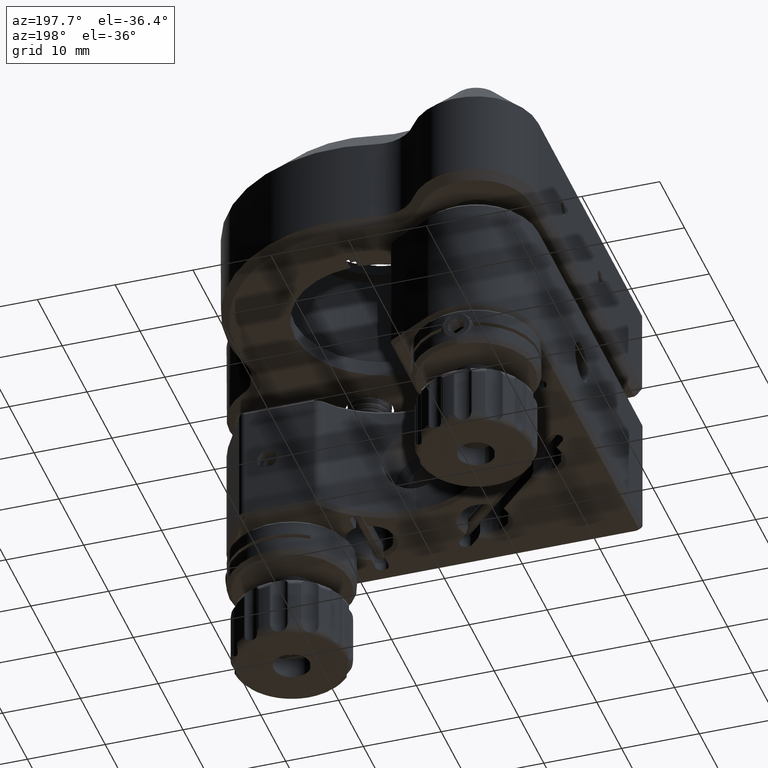
[diagram: clean part render]
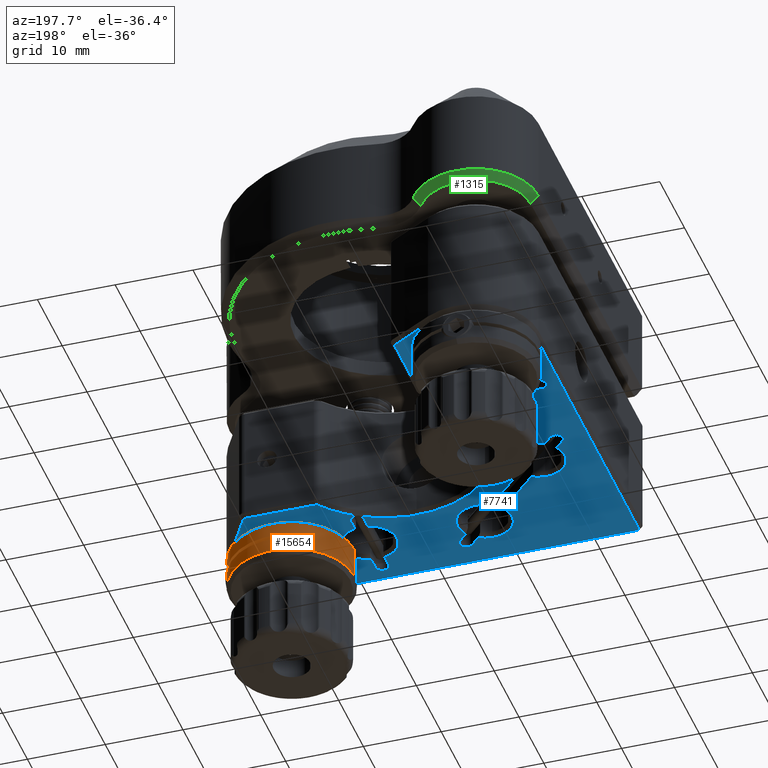
[diagram: same view with three faces highlighted in distinct colors, each labeled with its STEP entity id]
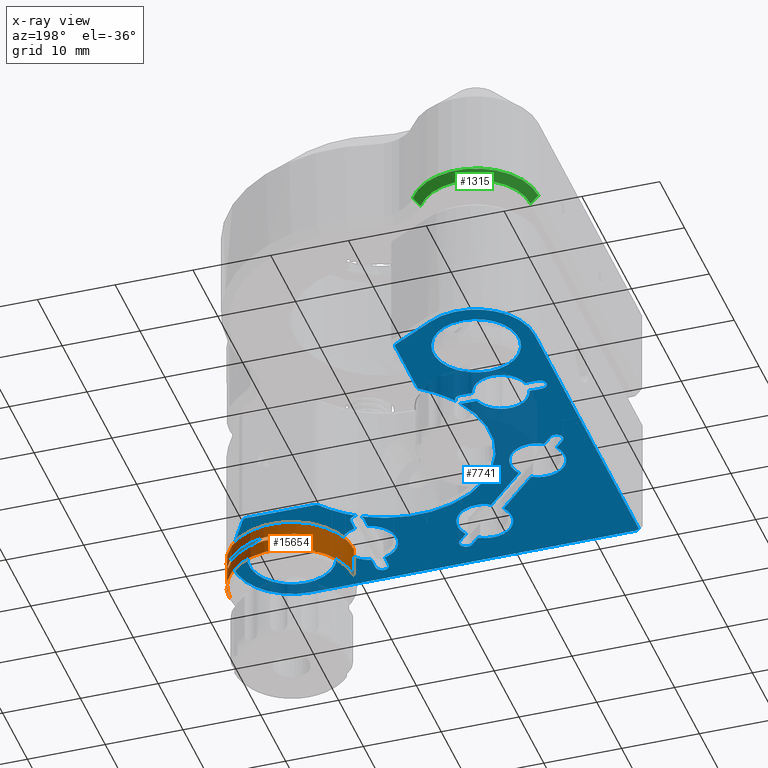
[diagram: x-ray of the same camera — body ghosted, the three highlighted faces saturated]
A machine part, auxiliary view with three faces highlighted in distinct colors.
The next image is the same camera in x-ray (body ghosted, the three faces saturated) — at least one of them is partly hidden behind the body in this view.
Their STEP definitions:

[orange] entity #15654 — the highlighted cylindrical surface (partial cylindrical patch) has radius 8 mm, axis along (0, 0, 1).
#967 = B_SPLINE_CURVE_WITH_KNOTS ( 'NONE', 3,
 ( #7220, #13967, #23044, #1119, #22628, #20465, #2882, #9510, #20321, #22901, #7793, #25336, #20744, #16425 ),
 .UNSPECIFIED., .F., .F.,
 ( 4, 2, 2, 2, 2, 2, 4 ),
 ( 0.000000000000000000, 0.0005840318241154156048, 0.001168063648230831210, 0.001460079560288547523, 0.001752095472346263619, 0.002044111384403979499, 0.002336127296461695813 ),
 .UNSPECIFIED. ) ;
#975 = ORIENTED_EDGE ( 'NONE', *, *, #8907, .T. ) ;
#1038 = DIRECTION ( 'NONE',  ( -0.000000000000000000, -0.000000000000000000, -1.000000000000000000 ) ) ;
#1043 = CARTESIAN_POINT ( 'NONE',  ( 31.74836364231643770, -21.98698666391774381, 20.84723559899007128 ) ) ;
#1119 = CARTESIAN_POINT ( 'NONE',  ( 31.80744251881375462, -22.44625419247633147, 18.25113183411697548 ) ) ;
#1179 = CARTESIAN_POINT ( 'NONE',  ( 31.68122993948196964, -21.61186016449638814, 20.17101546475221951 ) ) ;
#1197 = DIRECTION ( 'NONE',  ( -1.000000000000000000, 0.000000000000000000, 0.000000000000000000 ) ) ;
#1298 = DIRECTION ( 'NONE',  ( 1.000000000000000000, 0.000000000000000000, 0.000000000000000000 ) ) ;
#1321 = CARTESIAN_POINT ( 'NONE',  ( 31.84133761737278334, -23.00981462786942089, 21.37958492358061946 ) ) ;
#1747 = CARTESIAN_POINT ( 'NONE',  ( 31.67332331705330262, -21.57374314006720084, 19.47958492358062443 ) ) ;
#2358 = CARTESIAN_POINT ( 'NONE',  ( 31.84133761737279755, -23.20469378309720909, 21.37958492358062657 ) ) ;
#2558 = VECTOR ( 'NONE', #25192, 1000.000000000000000 ) ;
#2592 = CARTESIAN_POINT ( 'NONE',  ( 31.67332331705330262, -21.57374314006720084, 19.97958492358062443 ) ) ;
#2882 = CARTESIAN_POINT ( 'NONE',  ( 31.74846348273433705, -21.98764031338685854, 18.61124356520042156 ) ) ;
#3372 = VERTEX_POINT ( 'NONE', #13090 ) ;
#3399 = AXIS2_PLACEMENT_3D ( 'NONE', #21066, #18755, #1298 ) ;
#3414 = ORIENTED_EDGE ( 'NONE', *, *, #7847, .T. ) ;
#4566 = EDGE_CURVE ( 'NONE', #18364, #27847, #14442, .T. ) ;
#4568 = CARTESIAN_POINT ( 'NONE',  ( 15.84133761737279578, -23.20469378309720909, 21.72958492358062443 ) ) ;
#5106 = VERTEX_POINT ( 'NONE', #2592 ) ;
#5390 = CARTESIAN_POINT ( 'NONE',  ( 31.70157631974912604, -21.71507504129181143, 20.44584957524390489 ) ) ;
#5527 = CARTESIAN_POINT ( 'NONE',  ( 31.84133761737279755, -23.20469378309720909, 54.58602672155263491 ) ) ;
#5607 = LINE ( 'NONE', #14391, #2558 ) ;
#5885 = CARTESIAN_POINT ( 'NONE',  ( 31.84133761737279755, -23.20469378309720909, 18.07958492358062585 ) ) ;
#6113 = DIRECTION ( 'NONE',  ( 0.000000000000000000, 0.000000000000000000, 1.000000000000000000 ) ) ;
#6416 = AXIS2_PLACEMENT_3D ( 'NONE', #12418, #9854, #20790 ) ;
#6868 = CARTESIAN_POINT ( 'NONE',  ( 19.34133761737279400, -16.59031550543573630, 19.47958492358062443 ) ) ;
#7220 = CARTESIAN_POINT ( 'NONE',  ( 31.84133761737279755, -23.20469378309720909, 18.07958492358062585 ) ) ;
#7343 = CARTESIAN_POINT ( 'NONE',  ( 23.84133761737279755, -23.20469378309720909, 21.72958492358062443 ) ) ;
#7607 = CARTESIAN_POINT ( 'NONE',  ( 23.84133761737279755, -23.20469378309720909, 19.97958492358062443 ) ) ;
#7793 = CARTESIAN_POINT ( 'NONE',  ( 31.69387922324782281, -21.67543702280410400, 19.10240985051771290 ) ) ;
#7847 = EDGE_CURVE ( 'NONE', #3372, #25959, #5607, .T. ) ;
#7854 = CARTESIAN_POINT ( 'NONE',  ( 31.72846720758230177, -21.86414985823764212, 20.69648494212735557 ) ) ;
#7988 = DIRECTION ( 'NONE',  ( 0.000000000000000000, 0.000000000000000000, 1.000000000000000000 ) ) ;
#7993 = CARTESIAN_POINT ( 'NONE',  ( 31.83383928258375661, -22.81308175913868297, 21.34420305969596754 ) ) ;
#8056 = VERTEX_POINT ( 'NONE', #5885 ) ;
#8907 = EDGE_CURVE ( 'NONE', #5106, #10847, #14999, .T. ) ;
#9476 = CARTESIAN_POINT ( 'NONE',  ( 19.34133761737279400, -16.59031550543573630, 19.97958492358062443 ) ) ;
#9510 = CARTESIAN_POINT ( 'NONE',  ( 31.72861111236482401, -21.86500149977254281, 18.76152959045239044 ) ) ;
#9623 = B_SPLINE_CURVE_WITH_KNOTS ( 'NONE', 3,
 ( #23393, #25403, #1179, #18914, #5390, #16899, #7854, #1043, #27710, #14318, #25111, #18777, #18493, #7993, #1321, #20943 ),
 .UNSPECIFIED., .F., .F.,
 ( 4, 2, 2, 2, 2, 2, 2, 4 ),
 ( 0.002835874755387480378, 0.003127960128604555766, 0.003420045501821630720, 0.003712130875038705674, 0.004004216248255781062, 0.004296301621472856450, 0.004588386994689930970, 0.005172557741124078276 ),
 .UNSPECIFIED. ) ;
#9700 = VERTEX_POINT ( 'NONE', #20808 ) ;
#9854 = DIRECTION ( 'NONE',  ( 0.000000000000000000, 0.000000000000000000, 1.000000000000000000 ) ) ;
#10429 = FACE_OUTER_BOUND ( 'NONE', #23805, .T. ) ;
#10847 = VERTEX_POINT ( 'NONE', #9476 ) ;
#12418 = CARTESIAN_POINT ( 'NONE',  ( 23.84133761737279755, -23.20469378309720909, 17.72958492358062088 ) ) ;
#12503 = ORIENTED_EDGE ( 'NONE', *, *, #23009, .F. ) ;
#12679 = CARTESIAN_POINT ( 'NONE',  ( 31.84133761737279755, -23.20469378309720909, 21.72958492358062443 ) ) ;
#13090 = CARTESIAN_POINT ( 'NONE',  ( 15.84133761737279578, -23.20469378309720909, 17.72958492358062088 ) ) ;
#13947 = DIRECTION ( 'NONE',  ( 1.000000000000000000, 0.000000000000000000, 0.000000000000000000 ) ) ;
#13967 = CARTESIAN_POINT ( 'NONE',  ( 31.84133761737280466, -23.00717356995111018, 18.07958492358063296 ) ) ;
#14318 = CARTESIAN_POINT ( 'NONE',  ( 31.77877548211112568, -22.20339011480492530, 21.04462255250070868 ) ) ;
#14356 = DIRECTION ( 'NONE',  ( 1.040834085586084257E-16, 5.777789833161707559E-33, 1.000000000000000000 ) ) ;
#14391 = CARTESIAN_POINT ( 'NONE',  ( 15.84133761737279578, -23.20469378309720909, 54.58602672155263491 ) ) ;
#14442 = CIRCLE ( 'NONE', #3399, 8.000000000000000000 ) ;
#14999 = CIRCLE ( 'NONE', #26498, 8.000000000000000000 ) ;
#15635 = ORIENTED_EDGE ( 'NONE', *, *, #27816, .F. ) ;
#15654 = ADVANCED_FACE ( 'NONE', ( #10429 ), #21386, .T. ) ;
#16121 = DIRECTION ( 'NONE',  ( 0.000000000000000000, 0.000000000000000000, -1.000000000000000000 ) ) ;
#16329 = EDGE_CURVE ( 'NONE', #9700, #3372, #24790, .T. ) ;
#16425 = CARTESIAN_POINT ( 'NONE',  ( 31.67332331705330262, -21.57374314006720084, 19.47958492358062443 ) ) ;
#16505 = CARTESIAN_POINT ( 'NONE',  ( 23.84133761737279755, -23.20469378309720909, 54.58602672155263491 ) ) ;
#16563 = ORIENTED_EDGE ( 'NONE', *, *, #4566, .T. ) ;
#16596 = AXIS2_PLACEMENT_3D ( 'NONE', #7343, #16121, #13947 ) ;
#16597 = VECTOR ( 'NONE', #7988, 1000.000000000000000 ) ;
#16619 = LINE ( 'NONE', #27703, #23360 ) ;
#16899 = CARTESIAN_POINT ( 'NONE',  ( 31.71893036786227427, -21.80975689860810007, 20.61623600233259523 ) ) ;
#17049 = ORIENTED_EDGE ( 'NONE', *, *, #24411, .F. ) ;
#17192 = ORIENTED_EDGE ( 'NONE', *, *, #16329, .T. ) ;
#18364 = VERTEX_POINT ( 'NONE', #6868 ) ;
#18493 = CARTESIAN_POINT ( 'NONE',  ( 31.81415698634486944, -22.53947801271078077, 21.24267808149409476 ) ) ;
#18746 = EDGE_CURVE ( 'NONE', #9700, #8056, #25673, .T. ) ;
#18755 = DIRECTION ( 'NONE',  ( 1.040834085586084257E-16, 5.777789833161707559E-33, -1.000000000000000000 ) ) ;
#18777 = CARTESIAN_POINT ( 'NONE',  ( 31.80610933307745469, -22.45001871776702629, 21.20011671146383847 ) ) ;
#18783 = DIRECTION ( 'NONE',  ( 0.000000000000000000, 0.000000000000000000, 1.000000000000000000 ) ) ;
#18914 = CARTESIAN_POINT ( 'NONE',  ( 31.69376066704143113, -21.67483012647807428, 20.35528217575613397 ) ) ;
#19545 = VERTEX_POINT ( 'NONE', #2358 ) ;
#19831 = ORIENTED_EDGE ( 'NONE', *, *, #18746, .F. ) ;
#20321 = CARTESIAN_POINT ( 'NONE',  ( 31.71888717020190995, -21.80951347299764365, 18.84331471753442955 ) ) ;
#20465 = CARTESIAN_POINT ( 'NONE',  ( 31.75867948733381141, -22.05522660350167286, 18.54183641019163531 ) ) ;
#20744 = CARTESIAN_POINT ( 'NONE',  ( 31.67640516456978617, -21.58854247552279659, 19.38303698086973270 ) ) ;
#20790 = DIRECTION ( 'NONE',  ( -1.000000000000000000, 0.000000000000000000, 0.000000000000000000 ) ) ;
#20808 = CARTESIAN_POINT ( 'NONE',  ( 31.84133761737279755, -23.20469378309720909, 17.72958492358062088 ) ) ;
#20902 = EDGE_CURVE ( 'NONE', #25959, #24236, #24401, .T. ) ;
#20943 = CARTESIAN_POINT ( 'NONE',  ( 31.84133761737279755, -23.20469378309720909, 21.37958492358062657 ) ) ;
#21066 = CARTESIAN_POINT ( 'NONE',  ( 23.84133761737279755, -23.20469378309720909, 19.47958492358062443 ) ) ;
#21386 = CYLINDRICAL_SURFACE ( 'NONE', #24318, 8.000000000000000000 ) ;
#22628 = CARTESIAN_POINT ( 'NONE',  ( 31.78879783748940469, -22.27723252736478443, 18.35103462300584454 ) ) ;
#22901 = CARTESIAN_POINT ( 'NONE',  ( 31.70153561137657761, -21.71486072197045658, 19.01376341944121151 ) ) ;
#23009 = EDGE_CURVE ( 'NONE', #5106, #19545, #9623, .T. ) ;
#23044 = CARTESIAN_POINT ( 'NONE',  ( 31.83394211469726187, -22.81439740503078184, 18.11443078615781843 ) ) ;
#23360 = VECTOR ( 'NONE', #1038, 1000.000000000000000 ) ;
#23393 = CARTESIAN_POINT ( 'NONE',  ( 31.67332331705330262, -21.57374314006720084, 19.97958492358062443 ) ) ;
#23397 = LINE ( 'NONE', #25267, #26594 ) ;
#23430 = DIRECTION ( 'NONE',  ( -1.000000000000000000, 0.000000000000000000, 0.000000000000000000 ) ) ;
#23602 = ORIENTED_EDGE ( 'NONE', *, *, #27131, .T. ) ;
#23805 = EDGE_LOOP ( 'NONE', ( #19831, #17192, #3414, #24654, #15635, #12503, #975, #23602, #16563, #17049 ) ) ;
#24236 = VERTEX_POINT ( 'NONE', #12679 ) ;
#24318 = AXIS2_PLACEMENT_3D ( 'NONE', #16505, #6113, #1197 ) ;
#24401 = CIRCLE ( 'NONE', #16596, 8.000000000000000000 ) ;
#24411 = EDGE_CURVE ( 'NONE', #8056, #27847, #967, .T. ) ;
#24654 = ORIENTED_EDGE ( 'NONE', *, *, #20902, .T. ) ;
#24790 = CIRCLE ( 'NONE', #6416, 8.000000000000000000 ) ;
#25111 = CARTESIAN_POINT ( 'NONE',  ( 31.78841523784186407, -22.28215368545383157, 21.10105054897787014 ) ) ;
#25192 = DIRECTION ( 'NONE',  ( 0.000000000000000000, 0.000000000000000000, 1.000000000000000000 ) ) ;
#25267 = CARTESIAN_POINT ( 'NONE',  ( 31.84133761737279755, -23.20469378309720909, 54.58602672155263491 ) ) ;
#25336 = CARTESIAN_POINT ( 'NONE',  ( 31.68132022232672540, -21.61230291873000553, 19.28656557157271578 ) ) ;
#25403 = CARTESIAN_POINT ( 'NONE',  ( 31.67641737250303535, -21.58860109922117587, 20.07651531572579984 ) ) ;
#25673 = LINE ( 'NONE', #5527, #16597 ) ;
#25959 = VERTEX_POINT ( 'NONE', #4568 ) ;
#26498 = AXIS2_PLACEMENT_3D ( 'NONE', #7607, #14356, #23430 ) ;
#26594 = VECTOR ( 'NONE', #18783, 1000.000000000000000 ) ;
#27131 = EDGE_CURVE ( 'NONE', #10847, #18364, #16619, .T. ) ;
#27703 = CARTESIAN_POINT ( 'NONE',  ( 19.34133761737279400, -16.59031550543573630, 54.58602672155263491 ) ) ;
#27710 = CARTESIAN_POINT ( 'NONE',  ( 31.75879242944600023, -22.05602577557882782, 20.91806917257810028 ) ) ;
#27816 = EDGE_CURVE ( 'NONE', #19545, #24236, #23397, .T. ) ;
#27847 = VERTEX_POINT ( 'NONE', #1747 ) ;

[blue] entity #7741 — the highlighted planar face has unit normal (0, 0, 1).
#60 = CARTESIAN_POINT ( 'NONE',  ( -18.45866238262721737, -5.804693783097225612, 22.22958492358063154 ) ) ;
#248 = EDGE_CURVE ( 'NONE', #11091, #2438, #20860, .T. ) ;
#497 = CIRCLE ( 'NONE', #27469, 3.499999999999992895 ) ;
#731 = AXIS2_PLACEMENT_3D ( 'NONE', #8137, #19060, #5400 ) ;
#734 = CIRCLE ( 'NONE', #17779, 3.499999999999992895 ) ;
#790 = AXIS2_PLACEMENT_3D ( 'NONE', #22243, #22385, #11280 ) ;
#836 = VERTEX_POINT ( 'NONE', #19022 ) ;
#889 = VECTOR ( 'NONE', #7107, 1000.000000000000000 ) ;
#905 = ORIENTED_EDGE ( 'NONE', *, *, #5652, .T. ) ;
#973 = CARTESIAN_POINT ( 'NONE',  ( 14.69133761737279364, -19.80947655882423319, 22.22958492358063154 ) ) ;
#1008 = ORIENTED_EDGE ( 'NONE', *, *, #4770, .T. ) ;
#1087 = CARTESIAN_POINT ( 'NONE',  ( 12.99133761737279436, -18.20469378309721264, 22.22958492358063154 ) ) ;
#1152 = VERTEX_POINT ( 'NONE', #10666 ) ;
#1435 = CARTESIAN_POINT ( 'NONE',  ( 1.975830759296966832, -27.34126845303851994, 22.22958492358063154 ) ) ;
#1672 = EDGE_CURVE ( 'NONE', #22826, #19623, #7939, .T. ) ;
#1736 = DIRECTION ( 'NONE',  ( -0.7071067811865477948, 0.7071067811865473507, 0.000000000000000000 ) ) ;
#1791 = CIRCLE ( 'NONE', #5511, 3.499999999999996003 ) ;
#1827 = CARTESIAN_POINT ( 'NONE',  ( 0.8410779762490251388, -26.20651566999057636, 22.22958492358063154 ) ) ;
#1835 = AXIS2_PLACEMENT_3D ( 'NONE', #24752, #18415, #2863 ) ;
#1842 = DIRECTION ( 'NONE',  ( -2.844946500601963635E-16, 1.000000000000000000, -0.000000000000000000 ) ) ;
#2046 = CARTESIAN_POINT ( 'NONE',  ( 12.99133761737279436, -18.20469378309721264, 22.22958492358063154 ) ) ;
#2161 = CIRCLE ( 'NONE', #16460, 0.8500000000000000888 ) ;
#2438 = VERTEX_POINT ( 'NONE', #25828 ) ;
#2653 = DIRECTION ( 'NONE',  ( 0.000000000000000000, 0.000000000000000000, 1.000000000000000000 ) ) ;
#2671 = CARTESIAN_POINT ( 'NONE',  ( 2.043159504266153448, -25.00443414197344438, 22.22958492358063154 ) ) ;
#2706 = CARTESIAN_POINT ( 'NONE',  ( -5.433177044797020017, 0.9272005667803678852, 22.22958492358063154 ) ) ;
#2763 = ORIENTED_EDGE ( 'NONE', *, *, #20870, .T. ) ;
#2813 = EDGE_CURVE ( 'NONE', #22662, #28340, #22219, .T. ) ;
#2818 = CARTESIAN_POINT ( 'NONE',  ( -5.958662382627210263, 0.7453062169027798722, 22.22958492358063154 ) ) ;
#2863 = DIRECTION ( 'NONE',  ( 0.000000000000000000, -1.000000000000000000, 0.000000000000000000 ) ) ;
#2912 = LINE ( 'NONE', #26821, #889 ) ;
#2929 = CARTESIAN_POINT ( 'NONE',  ( 3.177912287314090367, -26.13918692502138086, 22.22958492358063154 ) ) ;
#2944 = CARTESIAN_POINT ( 'NONE',  ( 6.441337617372800750, -30.70469378309722686, 22.22958492358063154 ) ) ;
#2984 = AXIS2_PLACEMENT_3D ( 'NONE', #19253, #2653, #19541 ) ;
#3059 = CIRCLE ( 'NONE', #731, 3.499999999999992895 ) ;
#3076 = CARTESIAN_POINT ( 'NONE',  ( -15.09523705256850867, -10.27020064117305509, 22.22958492358063154 ) ) ;
#3118 = DIRECTION ( 'NONE',  ( -0.000000000000000000, -0.000000000000000000, -1.000000000000000000 ) ) ;
#3155 = DIRECTION ( 'NONE',  ( 0.000000000000000000, -1.000000000000000000, 0.000000000000000000 ) ) ;
#3206 = ORIENTED_EDGE ( 'NONE', *, *, #13699, .T. ) ;
#3228 = LINE ( 'NONE', #2944, #16670 ) ;
#3265 = DIRECTION ( 'NONE',  ( -0.000000000000000000, -0.000000000000000000, -1.000000000000000000 ) ) ;
#3299 = EDGE_CURVE ( 'NONE', #11806, #14359, #12807, .T. ) ;
#3301 = VERTEX_POINT ( 'NONE', #4167 ) ;
#3334 = CARTESIAN_POINT ( 'NONE',  ( 12.99133761737279613, -26.59991100737020275, 22.22958492358063154 ) ) ;
#3344 = ORIENTED_EDGE ( 'NONE', *, *, #19095, .T. ) ;
#3445 = CARTESIAN_POINT ( 'NONE',  ( -10.95866238262721204, 6.095306216902775631, 22.22958492358063154 ) ) ;
#3450 = LINE ( 'NONE', #18992, #6186 ) ;
#3577 = CARTESIAN_POINT ( 'NONE',  ( 13.84133761737279400, -23.20469378309721620, 22.22958492358063154 ) ) ;
#3692 = CIRCLE ( 'NONE', #28070, 0.8500000000000000888 ) ;
#3793 = VERTEX_POINT ( 'NONE', #2818 ) ;
#3826 = VERTEX_POINT ( 'NONE', #2671 ) ;
#3919 = LINE ( 'NONE', #21501, #27154 ) ;
#3922 = VERTEX_POINT ( 'NONE', #22700 ) ;
#4006 = VERTEX_POINT ( 'NONE', #25520 ) ;
#4143 = CIRCLE ( 'NONE', #27613, 5.499999999999991118 ) ;
#4167 = CARTESIAN_POINT ( 'NONE',  ( -7.563445158354221043, 2.445306216902775720, 22.22958492358063154 ) ) ;
#4173 = CARTESIAN_POINT ( 'NONE',  ( 12.99133761737279436, -19.80947655882423319, 22.22958492358063154 ) ) ;
#4200 = CIRCLE ( 'NONE', #20316, 3.499999999999992895 ) ;
#4247 = ORIENTED_EDGE ( 'NONE', *, *, #14487, .T. ) ;
#4323 = DIRECTION ( 'NONE',  ( 0.000000000000000000, -1.000000000000000000, 0.000000000000000000 ) ) ;
#4338 = AXIS2_PLACEMENT_3D ( 'NONE', #24168, #24316, #19560 ) ;
#4352 = CARTESIAN_POINT ( 'NONE',  ( -5.121170548003895817, 1.450022264109389392, 22.22958492358063154 ) ) ;
#4419 = CIRCLE ( 'NONE', #13624, 7.500000000000010658 ) ;
#4546 = ORIENTED_EDGE ( 'NONE', *, *, #22461, .T. ) ;
#4547 = ORIENTED_EDGE ( 'NONE', *, *, #16220, .T. ) ;
#4638 = CARTESIAN_POINT ( 'NONE',  ( -15.95866238262721382, 0.7453062169027755424, 22.22958492358063154 ) ) ;
#4670 = EDGE_CURVE ( 'NONE', #26431, #836, #27782, .T. ) ;
#4690 = VERTEX_POINT ( 'NONE', #5788 ) ;
#4759 = FACE_BOUND ( 'NONE', #10952, .T. ) ;
#4770 = EDGE_CURVE ( 'NONE', #6386, #22826, #6212, .T. ) ;
#4799 = VERTEX_POINT ( 'NONE', #6070 ) ;
#4826 = VERTEX_POINT ( 'NONE', #18894 ) ;
#4853 = DIRECTION ( 'NONE',  ( 0.000000000000000000, -1.000000000000000000, 0.000000000000000000 ) ) ;
#4878 = AXIS2_PLACEMENT_3D ( 'NONE', #20165, #26642, #6929 ) ;
#4899 = PLANE ( 'NONE',  #4878 ) ;
#4964 = CARTESIAN_POINT ( 'NONE',  ( 6.441337617372796309, -13.70469378309721975, 22.22958492358063154 ) ) ;
#5040 = FACE_OUTER_BOUND ( 'NONE', #18913, .T. ) ;
#5080 = ORIENTED_EDGE ( 'NONE', *, *, #21570, .T. ) ;
#5354 = VERTEX_POINT ( 'NONE', #1827 ) ;
#5387 = EDGE_CURVE ( 'NONE', #19623, #4690, #3450, .T. ) ;
#5400 = DIRECTION ( 'NONE',  ( 1.239088197126293282E-16, -1.000000000000000000, 0.000000000000000000 ) ) ;
#5511 = AXIS2_PLACEMENT_3D ( 'NONE', #10499, #10790, #25759 ) ;
#5547 = VERTEX_POINT ( 'NONE', #19129 ) ;
#5568 = VECTOR ( 'NONE', #16864, 1000.000000000000000 ) ;
#5652 = EDGE_CURVE ( 'NONE', #7006, #4799, #24114, .T. ) ;
#5715 = ORIENTED_EDGE ( 'NONE', *, *, #20454, .T. ) ;
#5739 = LINE ( 'NONE', #14523, #11729 ) ;
#5788 = CARTESIAN_POINT ( 'NONE',  ( -3.960484269520566869, -21.40495342422099156, 22.22958492358063154 ) ) ;
#5896 = CARTESIAN_POINT ( 'NONE',  ( -12.75840274150344023, -10.20287189620386314, 22.22958492358063154 ) ) ;
#5969 = ORIENTED_EDGE ( 'NONE', *, *, #11261, .T. ) ;
#6000 = EDGE_CURVE ( 'NONE', #27539, #20535, #5739, .T. ) ;
#6058 = CIRCLE ( 'NONE', #27692, 0.8500000000000000888 ) ;
#6070 = CARTESIAN_POINT ( 'NONE',  ( 23.84133761737279400, -17.70469378309722686, 22.22958492358063154 ) ) ;
#6122 = EDGE_CURVE ( 'NONE', #11309, #11806, #9910, .T. ) ;
#6128 = ORIENTED_EDGE ( 'NONE', *, *, #10979, .T. ) ;
#6186 = VECTOR ( 'NONE', #8069, 999.9999999999998863 ) ;
#6212 = LINE ( 'NONE', #1435, #19956 ) ;
#6255 = EDGE_CURVE ( 'NONE', #5354, #1152, #26851, .T. ) ;
#6309 = CARTESIAN_POINT ( 'NONE',  ( -10.95866238262720849, 1.595306216902775631, 22.22958492358063154 ) ) ;
#6363 = EDGE_CURVE ( 'NONE', #4006, #14691, #18635, .T. ) ;
#6386 = VERTEX_POINT ( 'NONE', #3076 ) ;
#6403 = DIRECTION ( 'NONE',  ( 0.000000000000000000, 0.000000000000000000, 1.000000000000000000 ) ) ;
#6462 = EDGE_CURVE ( 'NONE', #24052, #15926, #7565, .T. ) ;
#6487 = VERTEX_POINT ( 'NONE', #14024 ) ;
#6515 = CIRCLE ( 'NONE', #17072, 0.5000000000000073275 ) ;
#6544 = DIRECTION ( 'NONE',  ( 0.000000000000000000, -1.000000000000000000, 0.000000000000000000 ) ) ;
#6564 = CARTESIAN_POINT ( 'NONE',  ( -13.96048426952057042, -11.40495342422099334, 22.22958492358063154 ) ) ;
#6565 = CARTESIAN_POINT ( 'NONE',  ( -9.158922023750973196, -16.20651566999058701, 22.22958492358063154 ) ) ;
#6600 = DIRECTION ( 'NONE',  ( 0.000000000000000000, -1.000000000000000000, 0.000000000000000000 ) ) ;
#6672 = CARTESIAN_POINT ( 'NONE',  ( 3.177912287314090367, -26.13918692502138086, 22.22958492358063154 ) ) ;
#6715 = LINE ( 'NONE', #10745, #16853 ) ;
#6929 = DIRECTION ( 'NONE',  ( 1.110223024625156540E-16, -1.000000000000000000, 0.000000000000000000 ) ) ;
#6967 = DIRECTION ( 'NONE',  ( 0.8660254037844418162, -0.4999999999999946709, 0.000000000000000000 ) ) ;
#7006 = VERTEX_POINT ( 'NONE', #11559 ) ;
#7031 = ORIENTED_EDGE ( 'NONE', *, *, #21250, .T. ) ;
#7107 = DIRECTION ( 'NONE',  ( 2.844946500601963635E-16, -1.000000000000000000, 0.000000000000000000 ) ) ;
#7182 = ORIENTED_EDGE ( 'NONE', *, *, #25725, .T. ) ;
#7292 = ORIENTED_EDGE ( 'NONE', *, *, #28205, .T. ) ;
#7425 = ORIENTED_EDGE ( 'NONE', *, *, #6363, .T. ) ;
#7565 = LINE ( 'NONE', #20800, #8967 ) ;
#7638 = DIRECTION ( 'NONE',  ( 1.239088197126293282E-16, -1.000000000000000000, 0.000000000000000000 ) ) ;
#7659 = DIRECTION ( 'NONE',  ( 0.000000000000000000, 0.000000000000000000, 1.000000000000000000 ) ) ;
#7678 = VERTEX_POINT ( 'NONE', #973 ) ;
#7741 = ADVANCED_FACE ( 'NONE', ( #5040, #16137, #4759, #17860 ), #4899, .F. ) ;
#7788 = CARTESIAN_POINT ( 'NONE',  ( -2.758402741503435784, -20.20287189620386314, 22.22958492358063154 ) ) ;
#7798 = CARTESIAN_POINT ( 'NONE',  ( -18.45866238262722092, 11.59530621690277741, 22.22958492358063154 ) ) ;
#7859 = CARTESIAN_POINT ( 'NONE',  ( 13.84133761737279400, -18.20469378309721620, 22.22958492358063154 ) ) ;
#7939 = CIRCLE ( 'NONE', #11610, 3.499999999999996003 ) ;
#7940 = DIRECTION ( 'NONE',  ( 1.270859689360299146E-16, -1.000000000000000000, 0.000000000000000000 ) ) ;
#8018 = CARTESIAN_POINT ( 'NONE',  ( 13.84133761737279400, -18.20469378309721620, 22.22958492358063154 ) ) ;
#8058 = CARTESIAN_POINT ( 'NONE',  ( -10.95866238262721204, 11.59530621690277385, 22.22958492358063154 ) ) ;
#8069 = DIRECTION ( 'NONE',  ( 0.7071067811865479058, -0.7071067811865472397, 0.000000000000000000 ) ) ;
#8137 = CARTESIAN_POINT ( 'NONE',  ( -0.9586623826272075988, -23.20469378309721620, 22.22958492358063154 ) ) ;
#8154 = DIRECTION ( 'NONE',  ( 0.000000000000000000, 0.000000000000000000, 1.000000000000000000 ) ) ;
#8179 = CARTESIAN_POINT ( 'NONE',  ( 27.16110166521318448, -13.95469378309722330, 22.22958492358063154 ) ) ;
#8437 = CARTESIAN_POINT ( 'NONE',  ( -5.958662382627210263, 0.7453062169027798722, 22.22958492358063154 ) ) ;
#8493 = CARTESIAN_POINT ( 'NONE',  ( -14.35387960690019682, 0.7453062169027764305, 22.22958492358063154 ) ) ;
#8569 = DIRECTION ( 'NONE',  ( -0.000000000000000000, -0.000000000000000000, -1.000000000000000000 ) ) ;
#8634 = DIRECTION ( 'NONE',  ( 0.000000000000000000, 0.000000000000000000, 1.000000000000000000 ) ) ;
#8667 = CARTESIAN_POINT ( 'NONE',  ( 14.69133761737279364, -26.59991100737020275, 22.22958492358063154 ) ) ;
#8695 = CARTESIAN_POINT ( 'NONE',  ( 13.69605366457943596, -17.36720194847389465, 22.22958492358063154 ) ) ;
#8765 = EDGE_CURVE ( 'NONE', #14806, #26175, #4419, .T. ) ;
#8774 = CARTESIAN_POINT ( 'NONE',  ( 23.84133761737279400, -23.20469378309721620, 22.22958492358063154 ) ) ;
#8967 = VECTOR ( 'NONE', #13882, 1000.000000000000000 ) ;
#9156 = ORIENTED_EDGE ( 'NONE', *, *, #25849, .T. ) ;
#9232 = CIRCLE ( 'NONE', #17029, 0.8499999999999978684 ) ;
#9266 = EDGE_CURVE ( 'NONE', #25071, #12676, #734, .T. ) ;
#9276 = LINE ( 'NONE', #13727, #19184 ) ;
#9278 = AXIS2_PLACEMENT_3D ( 'NONE', #6309, #17538, #6600 ) ;
#9298 = CIRCLE ( 'NONE', #15263, 3.499999999999996003 ) ;
#9435 = CARTESIAN_POINT ( 'NONE',  ( 26.72808896332096040, -14.20469378309722330, 22.22958492358063154 ) ) ;
#9502 = ORIENTED_EDGE ( 'NONE', *, *, #14156, .T. ) ;
#9514 = EDGE_CURVE ( 'NONE', #14691, #17961, #26055, .T. ) ;
#9547 = ORIENTED_EDGE ( 'NONE', *, *, #22238, .T. ) ;
#9669 = CARTESIAN_POINT ( 'NONE',  ( -1.458662382627202714, 14.48205756285095624, 22.22958492358063154 ) ) ;
#9705 = DIRECTION ( 'NONE',  ( -0.7071067811865477948, 0.7071067811865473507, 0.000000000000000000 ) ) ;
#9735 = AXIS2_PLACEMENT_3D ( 'NONE', #21121, #23282, #14631 ) ;
#9838 = ORIENTED_EDGE ( 'NONE', *, *, #11734, .T. ) ;
#9867 = ORIENTED_EDGE ( 'NONE', *, *, #5387, .T. ) ;
#9876 = ORIENTED_EDGE ( 'NONE', *, *, #1672, .T. ) ;
#9885 = EDGE_CURVE ( 'NONE', #20535, #20671, #26539, .T. ) ;
#9910 = CIRCLE ( 'NONE', #2984, 0.8500000000000000888 ) ;
#10068 = DIRECTION ( 'NONE',  ( 0.000000000000000000, 0.000000000000000000, 1.000000000000000000 ) ) ;
#10210 = CARTESIAN_POINT ( 'NONE',  ( 14.69133761737279364, -18.20469378309721264, 22.22958492358063154 ) ) ;
#10253 = DIRECTION ( 'NONE',  ( -3.469446951953551080E-15, -1.000000000000000000, 0.000000000000000000 ) ) ;
#10274 = ORIENTED_EDGE ( 'NONE', *, *, #4670, .T. ) ;
#10318 = VERTEX_POINT ( 'NONE', #7788 ) ;
#10361 = CARTESIAN_POINT ( 'NONE',  ( 6.441337617372794533, -5.804693783097222948, 22.22958492358063154 ) ) ;
#10376 = VERTEX_POINT ( 'NONE', #10210 ) ;
#10383 = CARTESIAN_POINT ( 'NONE',  ( -14.35387960690019682, 2.445306216902772167, 22.22958492358063154 ) ) ;
#10416 = DIRECTION ( 'NONE',  ( 0.000000000000000000, 0.000000000000000000, 1.000000000000000000 ) ) ;
#10421 = AXIS2_PLACEMENT_3D ( 'NONE', #9435, #22967, #28092 ) ;
#10499 = CARTESIAN_POINT ( 'NONE',  ( -10.95866238262720849, 1.595306216902775631, 22.22958492358063154 ) ) ;
#10666 = CARTESIAN_POINT ( 'NONE',  ( 1.975830759296966832, -27.34126845303851994, 22.22958492358063154 ) ) ;
#10718 = DIRECTION ( 'NONE',  ( 0.000000000000000000, 0.000000000000000000, 1.000000000000000000 ) ) ;
#10745 = CARTESIAN_POINT ( 'NONE',  ( -5.958662382627212040, 2.445306216902775720, 22.22958492358063154 ) ) ;
#10790 = DIRECTION ( 'NONE',  ( 0.000000000000000000, 0.000000000000000000, 1.000000000000000000 ) ) ;
#10923 = CARTESIAN_POINT ( 'NONE',  ( -7.208662382627242238, 18.09049674528610296, 22.22958492358063154 ) ) ;
#10952 = EDGE_LOOP ( 'NONE', ( #9156, #17252 ) ) ;
#10979 = EDGE_CURVE ( 'NONE', #28016, #25071, #12341, .T. ) ;
#11031 = DIRECTION ( 'NONE',  ( -1.000000000000000000, -4.579669976578770729E-16, 0.000000000000000000 ) ) ;
#11091 = VERTEX_POINT ( 'NONE', #25580 ) ;
#11261 = EDGE_CURVE ( 'NONE', #3922, #3301, #6715, .T. ) ;
#11280 = DIRECTION ( 'NONE',  ( -6.938893903907102160E-15, -1.000000000000000000, 0.000000000000000000 ) ) ;
#11309 = VERTEX_POINT ( 'NONE', #28315 ) ;
#11416 = VECTOR ( 'NONE', #26798, 1000.000000000000000 ) ;
#11499 = AXIS2_PLACEMENT_3D ( 'NONE', #16573, #27658, #7940 ) ;
#11559 = CARTESIAN_POINT ( 'NONE',  ( 23.84133761737279400, -28.70469378309720909, 22.22958492358063154 ) ) ;
#11580 = CIRCLE ( 'NONE', #9278, 3.499999999999996003 ) ;
#11610 = AXIS2_PLACEMENT_3D ( 'NONE', #21307, #27925, #20885 ) ;
#11684 = CARTESIAN_POINT ( 'NONE',  ( 26.72808896332096040, -13.70469378309721264, 22.22958492358063154 ) ) ;
#11729 = VECTOR ( 'NONE', #23874, 1000.000000000000000 ) ;
#11734 = EDGE_CURVE ( 'NONE', #19508, #10318, #3059, .T. ) ;
#11806 = VERTEX_POINT ( 'NONE', #18789 ) ;
#12088 = DIRECTION ( 'NONE',  ( 0.000000000000000000, 0.000000000000000000, 1.000000000000000000 ) ) ;
#12127 = CARTESIAN_POINT ( 'NONE',  ( -7.956840495733842999, -15.00443414197345504, 22.22958492358063154 ) ) ;
#12333 = CIRCLE ( 'NONE', #23383, 0.8500000000000000888 ) ;
#12341 = LINE ( 'NONE', #1087, #14147 ) ;
#12437 = DIRECTION ( 'NONE',  ( 0.000000000000000000, -1.000000000000000000, 0.000000000000000000 ) ) ;
#12479 = VERTEX_POINT ( 'NONE', #4352 ) ;
#12486 = CARTESIAN_POINT ( 'NONE',  ( -1.708662382627208265, 14.91507026474318387, 22.22958492358063154 ) ) ;
#12501 = CARTESIAN_POINT ( 'NONE',  ( 13.84133761737279400, -18.20469378309721620, 22.22958492358063154 ) ) ;
#12507 = VERTEX_POINT ( 'NONE', #26670 ) ;
#12636 = DIRECTION ( 'NONE',  ( 0.000000000000000000, -1.000000000000000000, 0.000000000000000000 ) ) ;
#12641 = VERTEX_POINT ( 'NONE', #12127 ) ;
#12676 = VERTEX_POINT ( 'NONE', #3334 ) ;
#12726 = CARTESIAN_POINT ( 'NONE',  ( -14.49419628855994446, -9.669159877164490879, 22.22958492358063154 ) ) ;
#12780 = DIRECTION ( 'NONE',  ( 0.000000000000000000, -1.000000000000000000, 0.000000000000000000 ) ) ;
#12807 = LINE ( 'NONE', #21605, #23606 ) ;
#12835 = CARTESIAN_POINT ( 'NONE',  ( -10.95866238262720849, -9.704693783097230408, 22.22958492358063154 ) ) ;
#12853 = DIRECTION ( 'NONE',  ( 0.000000000000000000, -1.000000000000000000, 0.000000000000000000 ) ) ;
#13008 = ORIENTED_EDGE ( 'NONE', *, *, #6122, .T. ) ;
#13071 = ORIENTED_EDGE ( 'NONE', *, *, #25340, .T. ) ;
#13206 = AXIS2_PLACEMENT_3D ( 'NONE', #12501, #25878, #12636 ) ;
#13316 = DIRECTION ( 'NONE',  ( 0.000000000000000000, -1.000000000000000000, 0.000000000000000000 ) ) ;
#13351 = VECTOR ( 'NONE', #15503, 1000.000000000000000 ) ;
#13361 = CARTESIAN_POINT ( 'NONE',  ( -13.89315552455137848, -9.068119113155924893, 22.22958492358063154 ) ) ;
#13462 = ORIENTED_EDGE ( 'NONE', *, *, #17141, .T. ) ;
#13464 = AXIS2_PLACEMENT_3D ( 'NONE', #8058, #23879, #12780 ) ;
#13487 = DIRECTION ( 'NONE',  ( 0.000000000000000000, -1.000000000000000000, 0.000000000000000000 ) ) ;
#13564 = ORIENTED_EDGE ( 'NONE', *, *, #27817, .T. ) ;
#13624 = AXIS2_PLACEMENT_3D ( 'NONE', #23285, #3265, #27885 ) ;
#13631 = ORIENTED_EDGE ( 'NONE', *, *, #13998, .T. ) ;
#13635 = EDGE_CURVE ( 'NONE', #836, #6386, #2161, .T. ) ;
#13699 = EDGE_CURVE ( 'NONE', #7678, #10376, #9276, .T. ) ;
#13727 = CARTESIAN_POINT ( 'NONE',  ( 14.69133761737279364, -18.20469378309721264, 22.22958492358063154 ) ) ;
#13731 = CIRCLE ( 'NONE', #27075, 0.8499999999999978684 ) ;
#13777 = DIRECTION ( 'NONE',  ( 0.000000000000000000, 0.000000000000000000, 1.000000000000000000 ) ) ;
#13790 = AXIS2_PLACEMENT_3D ( 'NONE', #10361, #7659, #16435 ) ;
#13850 = CIRCLE ( 'NONE', #9735, 13.64999999999999147 ) ;
#13882 = DIRECTION ( 'NONE',  ( -1.000000000000000000, -4.579669976578770729E-16, 0.000000000000000000 ) ) ;
#13998 = EDGE_CURVE ( 'NONE', #14140, #4006, #25203, .T. ) ;
#14024 = CARTESIAN_POINT ( 'NONE',  ( 3.177912287314090367, -26.13918692502138086, 22.22958492358063154 ) ) ;
#14140 = VERTEX_POINT ( 'NONE', #14709 ) ;
#14147 = VECTOR ( 'NONE', #16390, 1000.000000000000000 ) ;
#14156 = EDGE_CURVE ( 'NONE', #18001, #16865, #16007, .T. ) ;
#14170 = CARTESIAN_POINT ( 'NONE',  ( 1.975830759296966832, -27.34126845303851994, 22.22958492358063154 ) ) ;
#14359 = VERTEX_POINT ( 'NONE', #8667 ) ;
#14427 = ORIENTED_EDGE ( 'NONE', *, *, #25381, .T. ) ;
#14487 = EDGE_CURVE ( 'NONE', #17961, #26855, #15278, .T. ) ;
#14523 = CARTESIAN_POINT ( 'NONE',  ( -5.958662382627210263, 0.7453062169027798722, 22.22958492358063154 ) ) ;
#14574 = DIRECTION ( 'NONE',  ( -0.000000000000000000, -0.000000000000000000, -1.000000000000000000 ) ) ;
#14591 = AXIS2_PLACEMENT_3D ( 'NONE', #15659, #13777, #4853 ) ;
#14600 = DIRECTION ( 'NONE',  ( 0.000000000000000000, 0.000000000000000000, 1.000000000000000000 ) ) ;
#14631 = DIRECTION ( 'NONE',  ( 1.270859689360299146E-16, -1.000000000000000000, 0.000000000000000000 ) ) ;
#14691 = VERTEX_POINT ( 'NONE', #11684 ) ;
#14704 = CARTESIAN_POINT ( 'NONE',  ( -14.49419628855994446, -9.669159877164490879, 22.22958492358063154 ) ) ;
#14709 = CARTESIAN_POINT ( 'NONE',  ( 17.42591637359382517, -13.90787399511135192, 22.22958492358063154 ) ) ;
#14806 = VERTEX_POINT ( 'NONE', #7798 ) ;
#14934 = VECTOR ( 'NONE', #26990, 1000.000000000000000 ) ;
#15024 = VERTEX_POINT ( 'NONE', #5896 ) ;
#15133 = DIRECTION ( 'NONE',  ( 0.000000000000000000, 0.000000000000000000, 1.000000000000000000 ) ) ;
#15263 = AXIS2_PLACEMENT_3D ( 'NONE', #25541, #14600, #12437 ) ;
#15278 = LINE ( 'NONE', #24778, #11416 ) ;
#15410 = ORIENTED_EDGE ( 'NONE', *, *, #6255, .T. ) ;
#15503 = DIRECTION ( 'NONE',  ( -1.110223024625156540E-16, 1.000000000000000000, 0.000000000000000000 ) ) ;
#15659 = CARTESIAN_POINT ( 'NONE',  ( -10.95866238262721204, 11.59530621690277385, 22.22958492358063154 ) ) ;
#15724 = DIRECTION ( 'NONE',  ( 0.000000000000000000, 0.000000000000000000, 1.000000000000000000 ) ) ;
#15861 = EDGE_CURVE ( 'NONE', #12479, #3922, #13731, .T. ) ;
#15918 = ORIENTED_EDGE ( 'NONE', *, *, #8765, .T. ) ;
#15926 = VERTEX_POINT ( 'NONE', #19494 ) ;
#15985 = CIRCLE ( 'NONE', #13206, 0.8500000000000000888 ) ;
#16007 = CIRCLE ( 'NONE', #25647, 0.5000000000000091038 ) ;
#16137 = FACE_BOUND ( 'NONE', #20311, .T. ) ;
#16220 = EDGE_CURVE ( 'NONE', #6487, #3826, #22673, .T. ) ;
#16338 = VECTOR ( 'NONE', #27134, 999.9999999999998863 ) ;
#16352 = EDGE_LOOP ( 'NONE', ( #16455, #19146, #20161, #3344, #10274, #26143, #1008, #9876, #9867, #13071, #15410, #16378, #4547, #24199, #9838 ) ) ;
#16378 = ORIENTED_EDGE ( 'NONE', *, *, #23274, .T. ) ;
#16390 = DIRECTION ( 'NONE',  ( 2.844946500601963635E-16, -1.000000000000000000, 0.000000000000000000 ) ) ;
#16435 = DIRECTION ( 'NONE',  ( 1.270859689360299146E-16, -1.000000000000000000, 0.000000000000000000 ) ) ;
#16447 = ORIENTED_EDGE ( 'NONE', *, *, #19840, .T. ) ;
#16455 = ORIENTED_EDGE ( 'NONE', *, *, #23237, .T. ) ;
#16460 = AXIS2_PLACEMENT_3D ( 'NONE', #12726, #6403, #6544 ) ;
#16554 = VERTEX_POINT ( 'NONE', #12835 ) ;
#16573 = CARTESIAN_POINT ( 'NONE',  ( 6.441337617372794533, -5.804693783097222948, 22.22958492358063154 ) ) ;
#16670 = VECTOR ( 'NONE', #20524, 1000.000000000000000 ) ;
#16853 = VECTOR ( 'NONE', #11031, 1000.000000000000000 ) ;
#16864 = DIRECTION ( 'NONE',  ( 1.110223024625156540E-16, -1.000000000000000000, 0.000000000000000000 ) ) ;
#16865 = VERTEX_POINT ( 'NONE', #9669 ) ;
#16876 = AXIS2_PLACEMENT_3D ( 'NONE', #19585, #17718, #4323 ) ;
#16884 = EDGE_CURVE ( 'NONE', #16554, #15024, #21136, .T. ) ;
#16890 = CIRCLE ( 'NONE', #14591, 5.499999999999998224 ) ;
#16932 = CARTESIAN_POINT ( 'NONE',  ( -10.95866238262721204, 17.09530621690277030, 22.22958492358063154 ) ) ;
#17029 = AXIS2_PLACEMENT_3D ( 'NONE', #24718, #20553, #13487 ) ;
#17072 = AXIS2_PLACEMENT_3D ( 'NONE', #27028, #3118, #18113 ) ;
#17141 = EDGE_CURVE ( 'NONE', #26352, #19588, #26660, .T. ) ;
#17149 = EDGE_CURVE ( 'NONE', #27983, #14140, #26194, .T. ) ;
#17186 = DIRECTION ( 'NONE',  ( -0.000000000000000000, -0.000000000000000000, -1.000000000000000000 ) ) ;
#17207 = EDGE_CURVE ( 'NONE', #3301, #5547, #1791, .T. ) ;
#17215 = DIRECTION ( 'NONE',  ( 1.000000000000000000, 4.579669976578770729E-16, 0.000000000000000000 ) ) ;
#17252 = ORIENTED_EDGE ( 'NONE', *, *, #2813, .T. ) ;
#17403 = EDGE_CURVE ( 'NONE', #4799, #7006, #4143, .T. ) ;
#17416 = CARTESIAN_POINT ( 'NONE',  ( -7.563445158354220155, 0.7453062169027789841, 22.22958492358063154 ) ) ;
#17486 = CIRCLE ( 'NONE', #1835, 0.8499999999999978684 ) ;
#17538 = DIRECTION ( 'NONE',  ( 0.000000000000000000, 0.000000000000000000, 1.000000000000000000 ) ) ;
#17628 = AXIS2_PLACEMENT_3D ( 'NONE', #19196, #17186, #27991 ) ;
#17718 = DIRECTION ( 'NONE',  ( 0.000000000000000000, 0.000000000000000000, 1.000000000000000000 ) ) ;
#17779 = AXIS2_PLACEMENT_3D ( 'NONE', #26568, #18079, #13316 ) ;
#17860 = FACE_BOUND ( 'NONE', #16352, .T. ) ;
#17961 = VERTEX_POINT ( 'NONE', #8179 ) ;
#18001 = VERTEX_POINT ( 'NONE', #12486 ) ;
#18079 = DIRECTION ( 'NONE',  ( 0.000000000000000000, 0.000000000000000000, 1.000000000000000000 ) ) ;
#18113 = DIRECTION ( 'NONE',  ( 0.000000000000000000, -1.000000000000000000, 0.000000000000000000 ) ) ;
#18308 = DIRECTION ( 'NONE',  ( 0.000000000000000000, -1.000000000000000000, 0.000000000000000000 ) ) ;
#18326 = ORIENTED_EDGE ( 'NONE', *, *, #3299, .T. ) ;
#18327 = EDGE_CURVE ( 'NONE', #18713, #14806, #19818, .T. ) ;
#18415 = DIRECTION ( 'NONE',  ( 0.000000000000000000, 0.000000000000000000, 1.000000000000000000 ) ) ;
#18574 = AXIS2_PLACEMENT_3D ( 'NONE', #14704, #15133, #25927 ) ;
#18635 = LINE ( 'NONE', #4964, #14934 ) ;
#18713 = VERTEX_POINT ( 'NONE', #19045 ) ;
#18789 = CARTESIAN_POINT ( 'NONE',  ( 14.69133761737279364, -28.20469378309721620, 22.22958492358063154 ) ) ;
#18894 = CARTESIAN_POINT ( 'NONE',  ( 23.84133761737279400, -30.70469378309722686, 22.22958492358063154 ) ) ;
#18913 = EDGE_LOOP ( 'NONE', ( #20095, #5969, #19842, #9547, #21810, #2763, #26825, #25891, #24558, #21697, #13462, #7031, #6128, #20048, #5715, #13008, #18326, #14427, #3206, #7182, #13564, #20745, #13631, #7425, #19256, #4247, #5080, #16447, #4546, #21980, #15918, #7292, #9502, #27815, #21339, #26967 ) ) ;
#18992 = CARTESIAN_POINT ( 'NONE',  ( 1.975830759296966832, -27.34126845303851994, 22.22958492358063154 ) ) ;
#19022 = CARTESIAN_POINT ( 'NONE',  ( -14.49419628855994446, -8.819159877164491235, 22.22958492358063154 ) ) ;
#19045 = CARTESIAN_POINT ( 'NONE',  ( -18.45866238262721382, -30.20469378309722330, 22.22958492358063154 ) ) ;
#19060 = DIRECTION ( 'NONE',  ( 0.000000000000000000, 0.000000000000000000, 1.000000000000000000 ) ) ;
#19095 = EDGE_CURVE ( 'NONE', #15024, #26431, #3919, .T. ) ;
#19129 = CARTESIAN_POINT ( 'NONE',  ( -10.95866238262720849, 5.095306216902772967, 22.22958492358063154 ) ) ;
#19146 = ORIENTED_EDGE ( 'NONE', *, *, #23113, .T. ) ;
#19184 = VECTOR ( 'NONE', #24394, 1000.000000000000000 ) ;
#19196 = CARTESIAN_POINT ( 'NONE',  ( -1.958662382627212040, 5.582250495329710738, 22.22958492358063154 ) ) ;
#19241 = VECTOR ( 'NONE', #6967, 999.9999999999998863 ) ;
#19253 = CARTESIAN_POINT ( 'NONE',  ( 13.84133761737279578, -28.20469378309721975, 22.22958492358063154 ) ) ;
#19256 = ORIENTED_EDGE ( 'NONE', *, *, #9514, .T. ) ;
#19330 = DIRECTION ( 'NONE',  ( 0.000000000000000000, 0.000000000000000000, 1.000000000000000000 ) ) ;
#19494 = CARTESIAN_POINT ( 'NONE',  ( -15.95866238262721382, 2.445306216902772167, 22.22958492358063154 ) ) ;
#19508 = VERTEX_POINT ( 'NONE', #26424 ) ;
#19541 = DIRECTION ( 'NONE',  ( 0.000000000000000000, -1.000000000000000000, 0.000000000000000000 ) ) ;
#19560 = DIRECTION ( 'NONE',  ( 0.000000000000000000, -1.000000000000000000, 0.000000000000000000 ) ) ;
#19585 = CARTESIAN_POINT ( 'NONE',  ( -10.95866238262720849, 1.595306216902775631, 22.22958492358063154 ) ) ;
#19588 = VERTEX_POINT ( 'NONE', #26275 ) ;
#19623 = VERTEX_POINT ( 'NONE', #6565 ) ;
#19674 = EDGE_CURVE ( 'NONE', #20671, #3793, #20088, .T. ) ;
#19765 = DIRECTION ( 'NONE',  ( -0.7071067811865477948, 0.7071067811865473507, 0.000000000000000000 ) ) ;
#19795 = CARTESIAN_POINT ( 'NONE',  ( 23.84133761737279400, -23.20469378309721620, 22.22958492358063154 ) ) ;
#19818 = LINE ( 'NONE', #60, #13351 ) ;
#19840 = EDGE_CURVE ( 'NONE', #4826, #12507, #3228, .T. ) ;
#19842 = ORIENTED_EDGE ( 'NONE', *, *, #17207, .T. ) ;
#19846 = VECTOR ( 'NONE', #19765, 1000.000000000000000 ) ;
#19956 = VECTOR ( 'NONE', #21626, 999.9999999999998863 ) ;
#20048 = ORIENTED_EDGE ( 'NONE', *, *, #9266, .T. ) ;
#20088 = LINE ( 'NONE', #8437, #21725 ) ;
#20095 = ORIENTED_EDGE ( 'NONE', *, *, #15861, .T. ) ;
#20161 = ORIENTED_EDGE ( 'NONE', *, *, #16884, .T. ) ;
#20165 = CARTESIAN_POINT ( 'NONE',  ( 6.441337617372794533, -5.804693783097222948, 22.22958492358063154 ) ) ;
#20295 = AXIS2_PLACEMENT_3D ( 'NONE', #19795, #8569, #28154 ) ;
#20311 = EDGE_LOOP ( 'NONE', ( #905, #24056 ) ) ;
#20316 = AXIS2_PLACEMENT_3D ( 'NONE', #27636, #10068, #7638 ) ;
#20454 = EDGE_CURVE ( 'NONE', #12676, #11309, #2912, .T. ) ;
#20524 = DIRECTION ( 'NONE',  ( -1.000000000000000000, -2.476147021457288150E-16, 0.000000000000000000 ) ) ;
#20535 = VERTEX_POINT ( 'NONE', #8493 ) ;
#20553 = DIRECTION ( 'NONE',  ( 0.000000000000000000, 0.000000000000000000, 1.000000000000000000 ) ) ;
#20671 = VERTEX_POINT ( 'NONE', #17416 ) ;
#20745 = ORIENTED_EDGE ( 'NONE', *, *, #17149, .T. ) ;
#20800 = CARTESIAN_POINT ( 'NONE',  ( -5.958662382627212040, 2.445306216902775720, 22.22958492358063154 ) ) ;
#20860 = CIRCLE ( 'NONE', #17628, 0.5000000000000099920 ) ;
#20870 = EDGE_CURVE ( 'NONE', #15926, #27539, #17486, .T. ) ;
#20885 = DIRECTION ( 'NONE',  ( 0.000000000000000000, -1.000000000000000000, 0.000000000000000000 ) ) ;
#20961 = EDGE_CURVE ( 'NONE', #3793, #26352, #9232, .T. ) ;
#21025 = DIRECTION ( 'NONE',  ( 0.000000000000000000, 0.000000000000000000, 1.000000000000000000 ) ) ;
#21121 = CARTESIAN_POINT ( 'NONE',  ( 6.441337617372794533, -5.804693783097222948, 22.22958492358063154 ) ) ;
#21136 = CIRCLE ( 'NONE', #24810, 3.499999999999996003 ) ;
#21250 = EDGE_CURVE ( 'NONE', #19588, #28016, #3692, .T. ) ;
#21307 = CARTESIAN_POINT ( 'NONE',  ( -10.95866238262720849, -13.20469378309722508, 22.22958492358063154 ) ) ;
#21339 = ORIENTED_EDGE ( 'NONE', *, *, #248, .T. ) ;
#21369 = LINE ( 'NONE', #6672, #19846 ) ;
#21501 = CARTESIAN_POINT ( 'NONE',  ( 3.177912287314090367, -26.13918692502138086, 22.22958492358063154 ) ) ;
#21515 = DIRECTION ( 'NONE',  ( 0.000000000000000000, -1.000000000000000000, 0.000000000000000000 ) ) ;
#21570 = EDGE_CURVE ( 'NONE', #26855, #4826, #24868, .T. ) ;
#21605 = CARTESIAN_POINT ( 'NONE',  ( 14.69133761737279364, -18.20469378309721264, 22.22958492358063154 ) ) ;
#21626 = DIRECTION ( 'NONE',  ( 0.7071067811865479058, -0.7071067811865472397, 0.000000000000000000 ) ) ;
#21697 = ORIENTED_EDGE ( 'NONE', *, *, #20961, .T. ) ;
#21725 = VECTOR ( 'NONE', #17215, 1000.000000000000000 ) ;
#21810 = ORIENTED_EDGE ( 'NONE', *, *, #6462, .T. ) ;
#21980 = ORIENTED_EDGE ( 'NONE', *, *, #18327, .T. ) ;
#22219 = CIRCLE ( 'NONE', #13464, 5.499999999999998224 ) ;
#22238 = EDGE_CURVE ( 'NONE', #5547, #24052, #11580, .T. ) ;
#22243 = CARTESIAN_POINT ( 'NONE',  ( 17.82828189579973355, -14.20469378309722330, 22.22958492358063154 ) ) ;
#22385 = DIRECTION ( 'NONE',  ( -0.000000000000000000, -0.000000000000000000, -1.000000000000000000 ) ) ;
#22461 = EDGE_CURVE ( 'NONE', #12507, #18713, #6515, .T. ) ;
#22662 = VERTEX_POINT ( 'NONE', #16932 ) ;
#22673 = LINE ( 'NONE', #2929, #28014 ) ;
#22700 = CARTESIAN_POINT ( 'NONE',  ( -5.958662382627212040, 2.445306216902775720, 22.22958492358063154 ) ) ;
#22724 = EDGE_CURVE ( 'NONE', #2438, #12479, #13850, .T. ) ;
#22761 = CARTESIAN_POINT ( 'NONE',  ( -1.708662382627206489, 14.91507026474318387, 22.22958492358063154 ) ) ;
#22775 = CARTESIAN_POINT ( 'NONE',  ( -10.95866238262720849, -13.20469378309722508, 22.22958492358063154 ) ) ;
#22826 = VERTEX_POINT ( 'NONE', #6564 ) ;
#22885 = CIRCLE ( 'NONE', #24254, 3.499999999999992895 ) ;
#22967 = DIRECTION ( 'NONE',  ( -0.000000000000000000, -0.000000000000000000, -1.000000000000000000 ) ) ;
#23113 = EDGE_CURVE ( 'NONE', #12641, #16554, #9298, .T. ) ;
#23237 = EDGE_CURVE ( 'NONE', #10318, #12641, #21369, .T. ) ;
#23274 = EDGE_CURVE ( 'NONE', #1152, #6487, #6058, .T. ) ;
#23282 = DIRECTION ( 'NONE',  ( 0.000000000000000000, 0.000000000000000000, 1.000000000000000000 ) ) ;
#23285 = CARTESIAN_POINT ( 'NONE',  ( -10.95866238262721204, 11.59530621690277741, 22.22958492358063154 ) ) ;
#23383 = AXIS2_PLACEMENT_3D ( 'NONE', #7859, #10416, #21515 ) ;
#23606 = VECTOR ( 'NONE', #1842, 1000.000000000000000 ) ;
#23664 = CARTESIAN_POINT ( 'NONE',  ( 2.576871523305531486, -26.74022768902995395, 22.22958492358063154 ) ) ;
#23874 = DIRECTION ( 'NONE',  ( 1.000000000000000000, 4.579669976578770729E-16, 0.000000000000000000 ) ) ;
#23879 = DIRECTION ( 'NONE',  ( 0.000000000000000000, 0.000000000000000000, 1.000000000000000000 ) ) ;
#23949 = VERTEX_POINT ( 'NONE', #25084 ) ;
#24052 = VERTEX_POINT ( 'NONE', #10383 ) ;
#24056 = ORIENTED_EDGE ( 'NONE', *, *, #17403, .T. ) ;
#24114 = CIRCLE ( 'NONE', #4338, 5.499999999999991118 ) ;
#24168 = CARTESIAN_POINT ( 'NONE',  ( 23.84133761737279400, -23.20469378309721620, 22.22958492358063154 ) ) ;
#24199 = ORIENTED_EDGE ( 'NONE', *, *, #26044, .T. ) ;
#24205 = EDGE_CURVE ( 'NONE', #16865, #11091, #25922, .T. ) ;
#24248 = DIRECTION ( 'NONE',  ( 0.000000000000000000, -1.000000000000000000, 0.000000000000000000 ) ) ;
#24254 = AXIS2_PLACEMENT_3D ( 'NONE', #25052, #21025, #27221 ) ;
#24316 = DIRECTION ( 'NONE',  ( 0.000000000000000000, 0.000000000000000000, 1.000000000000000000 ) ) ;
#24394 = DIRECTION ( 'NONE',  ( -2.844946500601963635E-16, 1.000000000000000000, -0.000000000000000000 ) ) ;
#24558 = ORIENTED_EDGE ( 'NONE', *, *, #19674, .T. ) ;
#24718 = CARTESIAN_POINT ( 'NONE',  ( -5.958662382627210263, 1.595306216902778296, 22.22958492358063154 ) ) ;
#24752 = CARTESIAN_POINT ( 'NONE',  ( -15.95866238262721382, 1.595306216902773855, 22.22958492358063154 ) ) ;
#24778 = CARTESIAN_POINT ( 'NONE',  ( 30.33652814575610179, -19.45469378309725172, 22.22958492358063154 ) ) ;
#24810 = AXIS2_PLACEMENT_3D ( 'NONE', #22775, #15724, #18308 ) ;
#24868 = CIRCLE ( 'NONE', #20295, 7.500000000000009770 ) ;
#25052 = CARTESIAN_POINT ( 'NONE',  ( -0.9586623826272075988, -23.20469378309721620, 22.22958492358063154 ) ) ;
#25071 = VERTEX_POINT ( 'NONE', #4173 ) ;
#25084 = CARTESIAN_POINT ( 'NONE',  ( 13.84133761737279400, -17.35469378309721478, 22.22958492358063154 ) ) ;
#25203 = CIRCLE ( 'NONE', #790, 0.5000000000000091038 ) ;
#25340 = EDGE_CURVE ( 'NONE', #4690, #5354, #4200, .T. ) ;
#25381 = EDGE_CURVE ( 'NONE', #14359, #7678, #497, .T. ) ;
#25520 = CARTESIAN_POINT ( 'NONE',  ( 17.82828189579973355, -13.70469378309721620, 22.22958492358063154 ) ) ;
#25541 = CARTESIAN_POINT ( 'NONE',  ( -10.95866238262720849, -13.20469378309722508, 22.22958492358063154 ) ) ;
#25557 = CARTESIAN_POINT ( 'NONE',  ( -5.958662382627210263, 1.595306216902778296, 22.22958492358063154 ) ) ;
#25564 = DIRECTION ( 'NONE',  ( 0.000000000000000000, -1.000000000000000000, 0.000000000000000000 ) ) ;
#25580 = CARTESIAN_POINT ( 'NONE',  ( -1.458662382627202714, 5.582250495329712514, 22.22958492358063154 ) ) ;
#25647 = AXIS2_PLACEMENT_3D ( 'NONE', #27405, #14574, #10253 ) ;
#25725 = EDGE_CURVE ( 'NONE', #10376, #23949, #15985, .T. ) ;
#25759 = DIRECTION ( 'NONE',  ( 0.000000000000000000, -1.000000000000000000, 0.000000000000000000 ) ) ;
#25828 = CARTESIAN_POINT ( 'NONE',  ( -1.661842594641342430, 5.179884973123805914, 22.22958492358063154 ) ) ;
#25849 = EDGE_CURVE ( 'NONE', #28340, #22662, #16890, .T. ) ;
#25878 = DIRECTION ( 'NONE',  ( 0.000000000000000000, 0.000000000000000000, 1.000000000000000000 ) ) ;
#25891 = ORIENTED_EDGE ( 'NONE', *, *, #9885, .T. ) ;
#25922 = LINE ( 'NONE', #26065, #5568 ) ;
#25927 = DIRECTION ( 'NONE',  ( 0.000000000000000000, -1.000000000000000000, 0.000000000000000000 ) ) ;
#26044 = EDGE_CURVE ( 'NONE', #3826, #19508, #22885, .T. ) ;
#26055 = CIRCLE ( 'NONE', #10421, 0.5000000000000091038 ) ;
#26065 = CARTESIAN_POINT ( 'NONE',  ( -1.458662382627201159, -5.804693783097223836, 22.22958492358063154 ) ) ;
#26143 = ORIENTED_EDGE ( 'NONE', *, *, #13635, .T. ) ;
#26175 = VERTEX_POINT ( 'NONE', #10923 ) ;
#26183 = DIRECTION ( 'NONE',  ( 0.000000000000000000, -1.000000000000000000, 0.000000000000000000 ) ) ;
#26194 = CIRCLE ( 'NONE', #11499, 13.64999999999999147 ) ;
#26275 = CARTESIAN_POINT ( 'NONE',  ( 13.17323196725036105, -17.67920844526705437, 22.22958492358063154 ) ) ;
#26352 = VERTEX_POINT ( 'NONE', #2706 ) ;
#26424 = CARTESIAN_POINT ( 'NONE',  ( -0.9586623826272080429, -19.70469378309722330, 22.22958492358063154 ) ) ;
#26431 = VERTEX_POINT ( 'NONE', #13361 ) ;
#26539 = CIRCLE ( 'NONE', #16876, 3.499999999999996003 ) ;
#26568 = CARTESIAN_POINT ( 'NONE',  ( 13.84133761737279400, -23.20469378309721620, 22.22958492358063154 ) ) ;
#26642 = DIRECTION ( 'NONE',  ( 0.000000000000000000, 0.000000000000000000, 1.000000000000000000 ) ) ;
#26660 = CIRCLE ( 'NONE', #13790, 13.64999999999999147 ) ;
#26670 = CARTESIAN_POINT ( 'NONE',  ( -17.95866238262720316, -30.70469378309723041, 22.22958492358063154 ) ) ;
#26705 = CARTESIAN_POINT ( 'NONE',  ( 30.33652814575610890, -19.45469378309724817, 22.22958492358063154 ) ) ;
#26798 = DIRECTION ( 'NONE',  ( 0.4999999999999950595, -0.8660254037844414832, 0.000000000000000000 ) ) ;
#26821 = CARTESIAN_POINT ( 'NONE',  ( 12.99133761737279436, -18.20469378309721264, 22.22958492358063154 ) ) ;
#26825 = ORIENTED_EDGE ( 'NONE', *, *, #6000, .T. ) ;
#26851 = LINE ( 'NONE', #14170, #16338 ) ;
#26855 = VERTEX_POINT ( 'NONE', #26705 ) ;
#26967 = ORIENTED_EDGE ( 'NONE', *, *, #22724, .T. ) ;
#26990 = DIRECTION ( 'NONE',  ( 1.000000000000000000, 2.167981241684185395E-16, 0.000000000000000000 ) ) ;
#27028 = CARTESIAN_POINT ( 'NONE',  ( -17.95866238262720316, -30.20469378309722330, 22.22958492358063154 ) ) ;
#27075 = AXIS2_PLACEMENT_3D ( 'NONE', #25557, #10718, #24248 ) ;
#27134 = DIRECTION ( 'NONE',  ( 0.7071067811865479058, -0.7071067811865472397, 0.000000000000000000 ) ) ;
#27154 = VECTOR ( 'NONE', #1736, 1000.000000000000000 ) ;
#27221 = DIRECTION ( 'NONE',  ( 1.239088197126293282E-16, -1.000000000000000000, 0.000000000000000000 ) ) ;
#27405 = CARTESIAN_POINT ( 'NONE',  ( -1.958662382627212040, 14.48205756285095624, 22.22958492358063154 ) ) ;
#27469 = AXIS2_PLACEMENT_3D ( 'NONE', #3577, #12088, #3155 ) ;
#27499 = LINE ( 'NONE', #22761, #19241 ) ;
#27539 = VERTEX_POINT ( 'NONE', #4638 ) ;
#27613 = AXIS2_PLACEMENT_3D ( 'NONE', #8774, #8634, #26183 ) ;
#27636 = CARTESIAN_POINT ( 'NONE',  ( -0.9586623826272075988, -23.20469378309721620, 22.22958492358063154 ) ) ;
#27658 = DIRECTION ( 'NONE',  ( 0.000000000000000000, 0.000000000000000000, 1.000000000000000000 ) ) ;
#27692 = AXIS2_PLACEMENT_3D ( 'NONE', #23664, #19330, #12853 ) ;
#27782 = CIRCLE ( 'NONE', #18574, 0.8500000000000000888 ) ;
#27815 = ORIENTED_EDGE ( 'NONE', *, *, #24205, .T. ) ;
#27817 = EDGE_CURVE ( 'NONE', #23949, #27983, #12333, .T. ) ;
#27885 = DIRECTION ( 'NONE',  ( 0.000000000000000000, -1.000000000000000000, 0.000000000000000000 ) ) ;
#27925 = DIRECTION ( 'NONE',  ( 0.000000000000000000, 0.000000000000000000, 1.000000000000000000 ) ) ;
#27983 = VERTEX_POINT ( 'NONE', #8695 ) ;
#27991 = DIRECTION ( 'NONE',  ( -2.602085213965158577E-15, -1.000000000000000000, 0.000000000000000000 ) ) ;
#28014 = VECTOR ( 'NONE', #9705, 1000.000000000000000 ) ;
#28016 = VERTEX_POINT ( 'NONE', #2046 ) ;
#28070 = AXIS2_PLACEMENT_3D ( 'NONE', #8018, #8154, #25564 ) ;
#28092 = DIRECTION ( 'NONE',  ( 0.000000000000000000, -1.000000000000000000, 0.000000000000000000 ) ) ;
#28154 = DIRECTION ( 'NONE',  ( 1.850371707708591999E-15, -1.000000000000000000, 0.000000000000000000 ) ) ;
#28205 = EDGE_CURVE ( 'NONE', #26175, #18001, #27499, .T. ) ;
#28315 = CARTESIAN_POINT ( 'NONE',  ( 12.99133761737279613, -28.20469378309721620, 22.22958492358063154 ) ) ;
#28340 = VERTEX_POINT ( 'NONE', #3445 ) ;

[green] entity #1315 — the highlighted conical surface has half-angle 45 deg.
#71 = AXIS2_PLACEMENT_3D ( 'NONE', #23469, #16427, #12101 ) ;
#1315 = ADVANCED_FACE ( 'NONE', ( #6935 ), #22653, .T. ) ;
#1638 = EDGE_CURVE ( 'NONE', #18945, #3296, #20348, .T. ) ;
#2977 = CARTESIAN_POINT ( 'NONE',  ( -4.989217580283261455, 15.25122316778783649, 42.30000000000001137 ) ) ;
#3198 = VERTEX_POINT ( 'NONE', #2977 ) ;
#3296 = VERTEX_POINT ( 'NONE', #4021 ) ;
#3550 = EDGE_LOOP ( 'NONE', ( #10425, #7892, #18614, #12884 ) ) ;
#3594 = CARTESIAN_POINT ( 'NONE',  ( -10.95866238262721204, 11.59530621690277385, 42.30000000000001137 ) ) ;
#4021 = CARTESIAN_POINT ( 'NONE',  ( -18.95866238262720671, 11.59530621690277385, 43.30000000000000426 ) ) ;
#5529 = DIRECTION ( 'NONE',  ( -0.7071067811865474617, 0.000000000000000000, 0.7071067811865474617 ) ) ;
#6935 = FACE_OUTER_BOUND ( 'NONE', #3550, .T. ) ;
#7892 = ORIENTED_EDGE ( 'NONE', *, *, #1638, .F. ) ;
#8042 = CARTESIAN_POINT ( 'NONE',  ( -4.989217580283261455, 15.25122316778783649, 42.30000000000001137 ) ) ;
#9672 = VECTOR ( 'NONE', #21141, 1000.000000000000114 ) ;
#9831 = CARTESIAN_POINT ( 'NONE',  ( -17.95866238262721026, 11.59530621690277385, 42.30000000000001137 ) ) ;
#10223 = AXIS2_PLACEMENT_3D ( 'NONE', #26934, #20466, #11680 ) ;
#10425 = ORIENTED_EDGE ( 'NONE', *, *, #12214, .T. ) ;
#11680 = DIRECTION ( 'NONE',  ( 1.000000000000000000, 0.000000000000000000, 0.000000000000000000 ) ) ;
#12019 = LINE ( 'NONE', #12294, #23784 ) ;
#12101 = DIRECTION ( 'NONE',  ( 1.000000000000000000, 0.000000000000000000, 0.000000000000000000 ) ) ;
#12214 = EDGE_CURVE ( 'NONE', #21686, #3296, #12019, .T. ) ;
#12294 = CARTESIAN_POINT ( 'NONE',  ( -17.95866238262721026, 11.59530621690277385, 42.30000000000001137 ) ) ;
#12884 = ORIENTED_EDGE ( 'NONE', *, *, #14832, .F. ) ;
#14832 = EDGE_CURVE ( 'NONE', #21686, #3198, #18320, .T. ) ;
#16291 = DIRECTION ( 'NONE',  ( 0.000000000000000000, -0.000000000000000000, -1.000000000000000000 ) ) ;
#16427 = DIRECTION ( 'NONE',  ( -0.000000000000000000, -0.000000000000000000, 1.000000000000000000 ) ) ;
#16936 = AXIS2_PLACEMENT_3D ( 'NONE', #3594, #16291, #27792 ) ;
#17458 = CARTESIAN_POINT ( 'NONE',  ( -4.136439751376987495, 15.77349701791427172, 43.30000000000000426 ) ) ;
#17732 = EDGE_CURVE ( 'NONE', #3198, #18945, #25026, .T. ) ;
#18320 = CIRCLE ( 'NONE', #16936, 6.999999999999997335 ) ;
#18614 = ORIENTED_EDGE ( 'NONE', *, *, #17732, .F. ) ;
#18945 = VERTEX_POINT ( 'NONE', #17458 ) ;
#20348 = CIRCLE ( 'NONE', #71, 7.999999999999991118 ) ;
#20466 = DIRECTION ( 'NONE',  ( -0.000000000000000000, -0.000000000000000000, 1.000000000000000000 ) ) ;
#21141 = DIRECTION ( 'NONE',  ( 0.6030049856651723550, 0.3693033810608105649, 0.7071067811865469066 ) ) ;
#21686 = VERTEX_POINT ( 'NONE', #9831 ) ;
#22653 = CONICAL_SURFACE ( 'NONE', #10223, 7.999999999999991118, 0.7853981633974488341 ) ;
#23469 = CARTESIAN_POINT ( 'NONE',  ( -10.95866238262721204, 11.59530621690277385, 43.30000000000000426 ) ) ;
#23784 = VECTOR ( 'NONE', #5529, 1000.000000000000114 ) ;
#25026 = LINE ( 'NONE', #8042, #9672 ) ;
#26934 = CARTESIAN_POINT ( 'NONE',  ( -10.95866238262721204, 11.59530621690277385, 43.30000000000000426 ) ) ;
#27792 = DIRECTION ( 'NONE',  ( 1.000000000000000000, 0.000000000000000000, 0.000000000000000000 ) ) ;